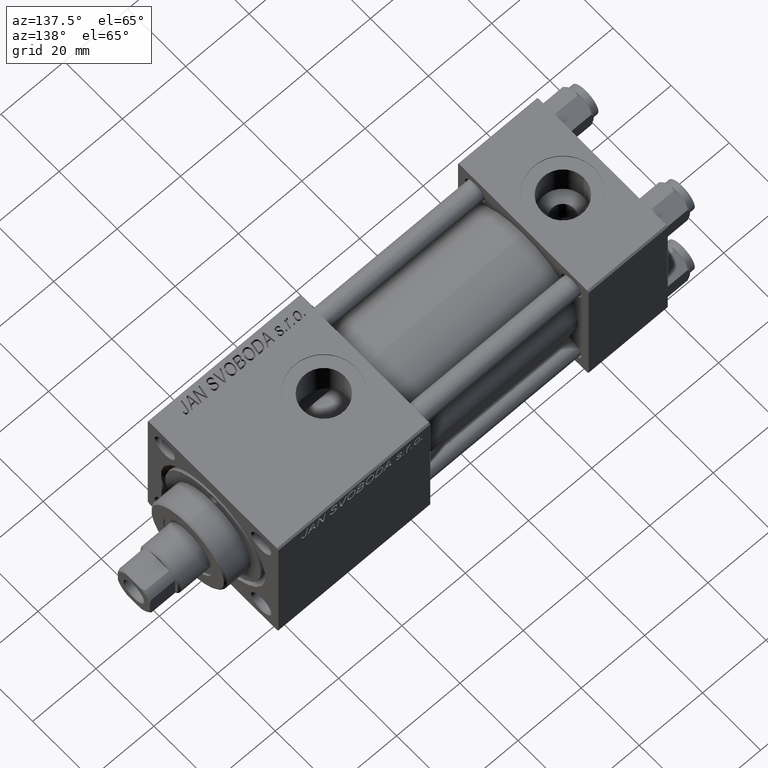
[diagram: clean part render]
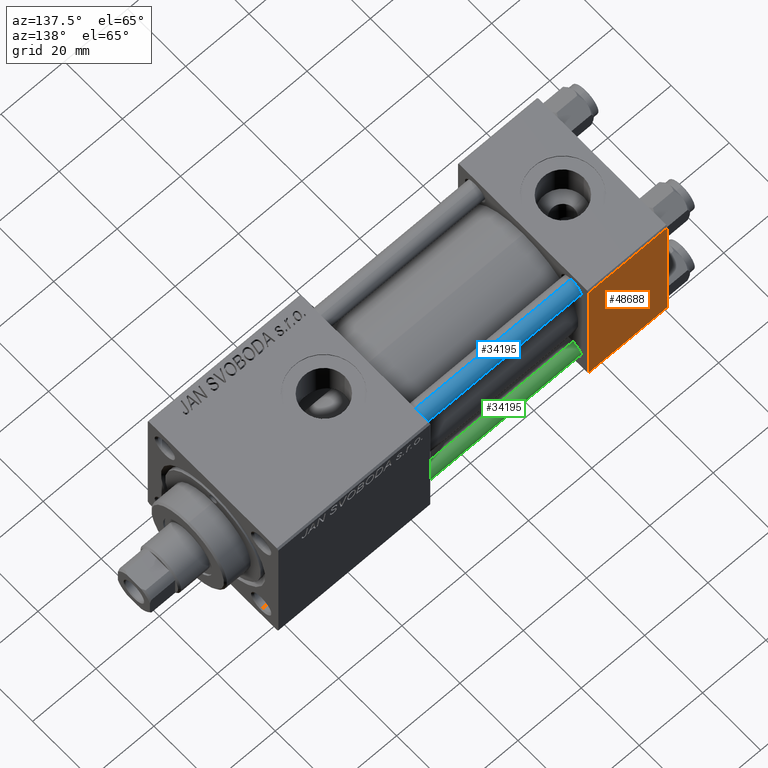
[diagram: same view with three faces highlighted in distinct colors, each labeled with its STEP entity id]
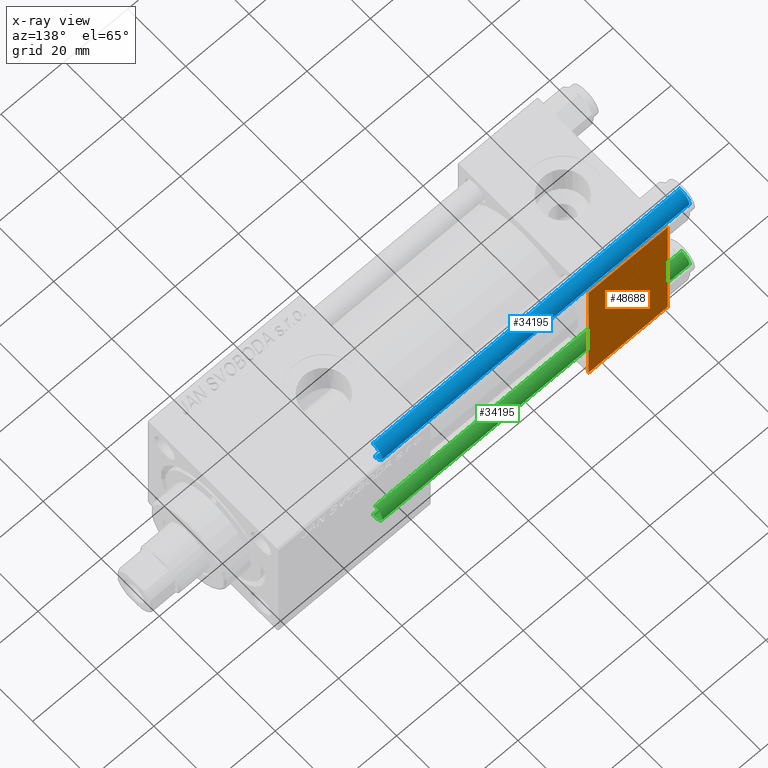
[diagram: x-ray of the same camera — body ghosted, the three highlighted faces saturated]
A machine part, auxiliary view with three faces highlighted in distinct colors.
The next image is the same camera in x-ray (body ghosted, the three faces saturated) — at least one of them is partly hidden behind the body in this view.
Their STEP definitions:

[orange] entity #48688 — the highlighted planar face has unit normal (0, 1, 0).
#495 = VERTEX_POINT ( 'NONE', #11984 ) ;
#986 = DIRECTION ( 'NONE',  ( -0.000000000000000000, 1.000000000000000000, 0.000000000000000000 ) ) ;
#1665 = DIRECTION ( 'NONE',  ( 0.000000000000000000, 0.000000000000000000, -1.000000000000000000 ) ) ;
#4472 = CARTESIAN_POINT ( 'NONE',  ( 25.00000000000000000, 22.50000000000000000, 21.99999999999999645 ) ) ;
#4564 = PLANE ( 'NONE',  #10406 ) ;
#9531 = CARTESIAN_POINT ( 'NONE',  ( 25.00000000000000000, 22.50000000000000000, 22.50000000000000355 ) ) ;
#9898 = EDGE_CURVE ( 'NONE', #10072, #15538, #30326, .T. ) ;
#10072 = VERTEX_POINT ( 'NONE', #44250 ) ;
#10406 = AXIS2_PLACEMENT_3D ( 'NONE', #23139, #986, #19833 ) ;
#11820 = EDGE_CURVE ( 'NONE', #39461, #10072, #32981, .T. ) ;
#11984 = CARTESIAN_POINT ( 'NONE',  ( 0.000000000000000000, 22.50000000000000000, 21.99999999999999645 ) ) ;
#13877 = CARTESIAN_POINT ( 'NONE',  ( 25.00000000000000000, 22.50000000000000000, 21.99999999999999645 ) ) ;
#14643 = LINE ( 'NONE', #45452, #22319 ) ;
#15538 = VERTEX_POINT ( 'NONE', #26188 ) ;
#15751 = VECTOR ( 'NONE', #37577, 1000.000000000000000 ) ;
#16492 = FACE_OUTER_BOUND ( 'NONE', #45279, .T. ) ;
#19833 = DIRECTION ( 'NONE',  ( 0.000000000000000000, -0.000000000000000000, 1.000000000000000000 ) ) ;
#21769 = LINE ( 'NONE', #13877, #15751 ) ;
#22319 = VECTOR ( 'NONE', #37573, 1000.000000000000000 ) ;
#23139 = CARTESIAN_POINT ( 'NONE',  ( 25.00000000000000000, 22.50000000000000000, 22.50000000000000355 ) ) ;
#26188 = CARTESIAN_POINT ( 'NONE',  ( 0.000000000000000000, 22.50000000000000000, -21.99999999999996803 ) ) ;
#26756 = VECTOR ( 'NONE', #45825, 1000.000000000000000 ) ;
#30326 = LINE ( 'NONE', #33898, #26756 ) ;
#31051 = EDGE_CURVE ( 'NONE', #495, #15538, #14643, .T. ) ;
#32981 = LINE ( 'NONE', #9531, #34149 ) ;
#33898 = CARTESIAN_POINT ( 'NONE',  ( 25.00000000000000000, 22.50000000000000000, -21.99999999999998224 ) ) ;
#34149 = VECTOR ( 'NONE', #1665, 1000.000000000000000 ) ;
#35507 = EDGE_CURVE ( 'NONE', #495, #39461, #21769, .T. ) ;
#37339 = ORIENTED_EDGE ( 'NONE', *, *, #31051, .F. ) ;
#37573 = DIRECTION ( 'NONE',  ( 0.000000000000000000, 0.000000000000000000, -1.000000000000000000 ) ) ;
#37577 = DIRECTION ( 'NONE',  ( 1.000000000000000000, 0.000000000000000000, 0.000000000000000000 ) ) ;
#38143 = ORIENTED_EDGE ( 'NONE', *, *, #9898, .T. ) ;
#39461 = VERTEX_POINT ( 'NONE', #4472 ) ;
#43280 = ORIENTED_EDGE ( 'NONE', *, *, #35507, .T. ) ;
#44250 = CARTESIAN_POINT ( 'NONE',  ( 25.00000000000000000, 22.50000000000000000, -21.99999999999996803 ) ) ;
#45279 = EDGE_LOOP ( 'NONE', ( #50290, #38143, #37339, #43280 ) ) ;
#45452 = CARTESIAN_POINT ( 'NONE',  ( 0.000000000000000000, 22.50000000000000000, 22.50000000000000355 ) ) ;
#45825 = DIRECTION ( 'NONE',  ( -1.000000000000000000, 0.000000000000000000, 0.000000000000000000 ) ) ;
#48688 = ADVANCED_FACE ( 'NONE', ( #16492 ), #4564, .T. ) ;
#50290 = ORIENTED_EDGE ( 'NONE', *, *, #11820, .T. ) ;

[blue] entity #34195 — the highlighted cylindrical surface (edge-blend (fillet) strip) has radius 3 mm, axis along (-1, 0, 0).
#1211 = DIRECTION ( 'NONE',  ( 0.000000000000000000, 0.000000000000000000, -1.000000000000000000 ) ) ;
#1458 = LINE ( 'NONE', #13898, #40092 ) ;
#1881 = LINE ( 'NONE', #13328, #23304 ) ;
#2049 = CARTESIAN_POINT ( 'NONE',  ( -3.000000000000000444, 0.000000000000000000, 0.5000000000000281997 ) ) ;
#3526 = AXIS2_PLACEMENT_3D ( 'NONE', #36106, #1211, #16717 ) ;
#5936 = DIRECTION ( 'NONE',  ( 1.000000000000000000, 0.000000000000000000, 0.000000000000000000 ) ) ;
#7093 = VERTEX_POINT ( 'NONE', #32752 ) ;
#8891 = CARTESIAN_POINT ( 'NONE',  ( 3.000000000000000444, 3.673940397442060361E-16, 0.5000000000000281997 ) ) ;
#9624 = VERTEX_POINT ( 'NONE', #2049 ) ;
#11153 = ORIENTED_EDGE ( 'NONE', *, *, #24455, .T. ) ;
#11412 = ORIENTED_EDGE ( 'NONE', *, *, #45766, .T. ) ;
#11441 = CARTESIAN_POINT ( 'NONE',  ( 0.000000000000000000, 0.000000000000000000, 98.00000000000000000 ) ) ;
#12701 = CIRCLE ( 'NONE', #37901, 3.000000000000000444 ) ;
#13328 = CARTESIAN_POINT ( 'NONE',  ( 3.000000000000000444, 3.673940397442060361E-16, 98.00000000000000000 ) ) ;
#13898 = CARTESIAN_POINT ( 'NONE',  ( -3.000000000000000444, 0.000000000000000000, 98.00000000000000000 ) ) ;
#15605 = CARTESIAN_POINT ( 'NONE',  ( -3.000000000000000444, 0.000000000000000000, 97.50000000000001421 ) ) ;
#16717 = DIRECTION ( 'NONE',  ( 1.000000000000000000, 0.000000000000000000, 0.000000000000000000 ) ) ;
#20956 = DIRECTION ( 'NONE',  ( -0.000000000000000000, -0.000000000000000000, 1.000000000000000000 ) ) ;
#21218 = DIRECTION ( 'NONE',  ( -0.000000000000000000, -0.000000000000000000, -1.000000000000000000 ) ) ;
#23304 = VECTOR ( 'NONE', #21218, 1000.000000000000000 ) ;
#24455 = EDGE_CURVE ( 'NONE', #25140, #7093, #42539, .T. ) ;
#24599 = EDGE_CURVE ( 'NONE', #25140, #9624, #1458, .T. ) ;
#25140 = VERTEX_POINT ( 'NONE', #15605 ) ;
#26314 = AXIS2_PLACEMENT_3D ( 'NONE', #11441, #26484, #33632 ) ;
#26484 = DIRECTION ( 'NONE',  ( -0.000000000000000000, -0.000000000000000000, -1.000000000000000000 ) ) ;
#29114 = CARTESIAN_POINT ( 'NONE',  ( 0.000000000000000000, 0.000000000000000000, 0.5000000000000281997 ) ) ;
#29838 = EDGE_LOOP ( 'NONE', ( #11153, #11412, #41296, #34369 ) ) ;
#32752 = CARTESIAN_POINT ( 'NONE',  ( 3.000000000000000444, 3.673940397442060361E-16, 97.50000000000001421 ) ) ;
#33632 = DIRECTION ( 'NONE',  ( -1.000000000000000000, 0.000000000000000000, 0.000000000000000000 ) ) ;
#34195 = ADVANCED_FACE ( 'NONE', ( #46063 ), #34385, .T. ) ;
#34369 = ORIENTED_EDGE ( 'NONE', *, *, #24599, .F. ) ;
#34385 = CYLINDRICAL_SURFACE ( 'NONE', #26314, 3.000000000000000444 ) ;
#36106 = CARTESIAN_POINT ( 'NONE',  ( 0.000000000000000000, 0.000000000000000000, 97.50000000000001421 ) ) ;
#36283 = VERTEX_POINT ( 'NONE', #8891 ) ;
#37901 = AXIS2_PLACEMENT_3D ( 'NONE', #29114, #20956, #5936 ) ;
#40092 = VECTOR ( 'NONE', #44215, 1000.000000000000000 ) ;
#41296 = ORIENTED_EDGE ( 'NONE', *, *, #44038, .T. ) ;
#42539 = CIRCLE ( 'NONE', #3526, 3.000000000000000444 ) ;
#44038 = EDGE_CURVE ( 'NONE', #36283, #9624, #12701, .T. ) ;
#44215 = DIRECTION ( 'NONE',  ( -0.000000000000000000, -0.000000000000000000, -1.000000000000000000 ) ) ;
#45766 = EDGE_CURVE ( 'NONE', #7093, #36283, #1881, .T. ) ;
#46063 = FACE_OUTER_BOUND ( 'NONE', #29838, .T. ) ;

[green] entity #34195 — the highlighted cylindrical surface (edge-blend (fillet) strip) has radius 3 mm, axis along (1, -0, 0).
#1211 = DIRECTION ( 'NONE',  ( 0.000000000000000000, 0.000000000000000000, -1.000000000000000000 ) ) ;
#1458 = LINE ( 'NONE', #13898, #40092 ) ;
#1881 = LINE ( 'NONE', #13328, #23304 ) ;
#2049 = CARTESIAN_POINT ( 'NONE',  ( -3.000000000000000444, 0.000000000000000000, 0.5000000000000281997 ) ) ;
#3526 = AXIS2_PLACEMENT_3D ( 'NONE', #36106, #1211, #16717 ) ;
#5936 = DIRECTION ( 'NONE',  ( 1.000000000000000000, 0.000000000000000000, 0.000000000000000000 ) ) ;
#7093 = VERTEX_POINT ( 'NONE', #32752 ) ;
#8891 = CARTESIAN_POINT ( 'NONE',  ( 3.000000000000000444, 3.673940397442060361E-16, 0.5000000000000281997 ) ) ;
#9624 = VERTEX_POINT ( 'NONE', #2049 ) ;
#11153 = ORIENTED_EDGE ( 'NONE', *, *, #24455, .T. ) ;
#11412 = ORIENTED_EDGE ( 'NONE', *, *, #45766, .T. ) ;
#11441 = CARTESIAN_POINT ( 'NONE',  ( 0.000000000000000000, 0.000000000000000000, 98.00000000000000000 ) ) ;
#12701 = CIRCLE ( 'NONE', #37901, 3.000000000000000444 ) ;
#13328 = CARTESIAN_POINT ( 'NONE',  ( 3.000000000000000444, 3.673940397442060361E-16, 98.00000000000000000 ) ) ;
#13898 = CARTESIAN_POINT ( 'NONE',  ( -3.000000000000000444, 0.000000000000000000, 98.00000000000000000 ) ) ;
#15605 = CARTESIAN_POINT ( 'NONE',  ( -3.000000000000000444, 0.000000000000000000, 97.50000000000001421 ) ) ;
#16717 = DIRECTION ( 'NONE',  ( 1.000000000000000000, 0.000000000000000000, 0.000000000000000000 ) ) ;
#20956 = DIRECTION ( 'NONE',  ( -0.000000000000000000, -0.000000000000000000, 1.000000000000000000 ) ) ;
#21218 = DIRECTION ( 'NONE',  ( -0.000000000000000000, -0.000000000000000000, -1.000000000000000000 ) ) ;
#23304 = VECTOR ( 'NONE', #21218, 1000.000000000000000 ) ;
#24455 = EDGE_CURVE ( 'NONE', #25140, #7093, #42539, .T. ) ;
#24599 = EDGE_CURVE ( 'NONE', #25140, #9624, #1458, .T. ) ;
#25140 = VERTEX_POINT ( 'NONE', #15605 ) ;
#26314 = AXIS2_PLACEMENT_3D ( 'NONE', #11441, #26484, #33632 ) ;
#26484 = DIRECTION ( 'NONE',  ( -0.000000000000000000, -0.000000000000000000, -1.000000000000000000 ) ) ;
#29114 = CARTESIAN_POINT ( 'NONE',  ( 0.000000000000000000, 0.000000000000000000, 0.5000000000000281997 ) ) ;
#29838 = EDGE_LOOP ( 'NONE', ( #11153, #11412, #41296, #34369 ) ) ;
#32752 = CARTESIAN_POINT ( 'NONE',  ( 3.000000000000000444, 3.673940397442060361E-16, 97.50000000000001421 ) ) ;
#33632 = DIRECTION ( 'NONE',  ( -1.000000000000000000, 0.000000000000000000, 0.000000000000000000 ) ) ;
#34195 = ADVANCED_FACE ( 'NONE', ( #46063 ), #34385, .T. ) ;
#34369 = ORIENTED_EDGE ( 'NONE', *, *, #24599, .F. ) ;
#34385 = CYLINDRICAL_SURFACE ( 'NONE', #26314, 3.000000000000000444 ) ;
#36106 = CARTESIAN_POINT ( 'NONE',  ( 0.000000000000000000, 0.000000000000000000, 97.50000000000001421 ) ) ;
#36283 = VERTEX_POINT ( 'NONE', #8891 ) ;
#37901 = AXIS2_PLACEMENT_3D ( 'NONE', #29114, #20956, #5936 ) ;
#40092 = VECTOR ( 'NONE', #44215, 1000.000000000000000 ) ;
#41296 = ORIENTED_EDGE ( 'NONE', *, *, #44038, .T. ) ;
#42539 = CIRCLE ( 'NONE', #3526, 3.000000000000000444 ) ;
#44038 = EDGE_CURVE ( 'NONE', #36283, #9624, #12701, .T. ) ;
#44215 = DIRECTION ( 'NONE',  ( -0.000000000000000000, -0.000000000000000000, -1.000000000000000000 ) ) ;
#45766 = EDGE_CURVE ( 'NONE', #7093, #36283, #1881, .T. ) ;
#46063 = FACE_OUTER_BOUND ( 'NONE', #29838, .T. ) ;